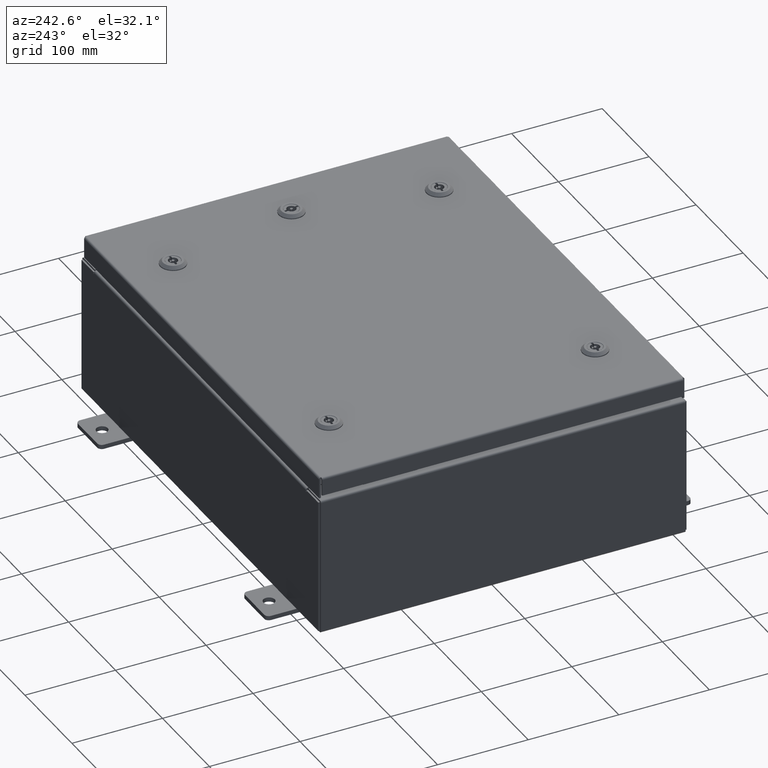
[diagram: clean part render]
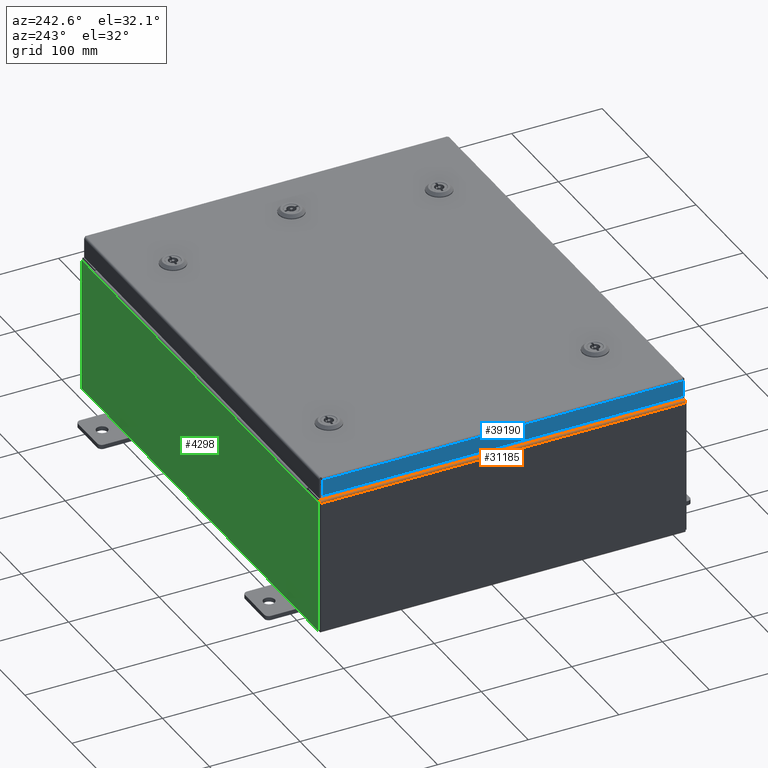
[diagram: same view with three faces highlighted in distinct colors, each labeled with its STEP entity id]
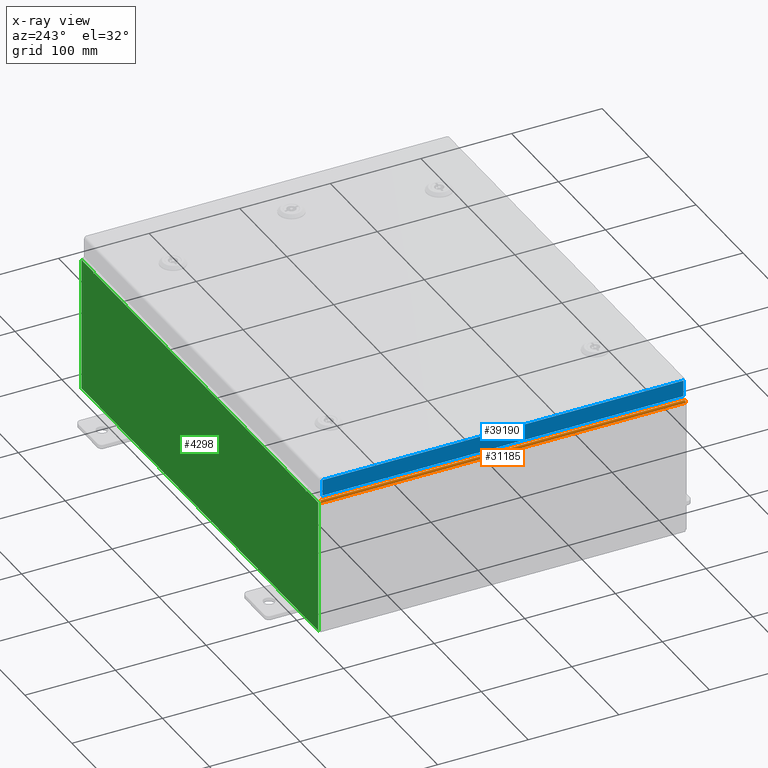
[diagram: x-ray of the same camera — body ghosted, the three highlighted faces saturated]
A machine part, auxiliary view with three faces highlighted in distinct colors.
The next image is the same camera in x-ray (body ghosted, the three faces saturated) — at least one of them is partly hidden behind the body in this view.
Their STEP definitions:

[orange] entity #31185 — the highlighted cylindrical surface (edge-blend (fillet) strip) has radius 2.2276 mm, axis along (-0, -1, -0).
#4005 = CARTESIAN_POINT ( 'NONE',  ( -9.912300000000021400, 7.925300000000000000, 5.837599999999999200 ) ) ;
#4453 = DIRECTION ( 'NONE',  ( 0.0000000000000000000, 0.0000000000000000000, 1.000000000000000000 ) ) ;
#4606 = VECTOR ( 'NONE', #54400, 39.37007874015748100 ) ;
#4804 = EDGE_CURVE ( 'NONE', #8283, #51088, #12157, .T. ) ;
#5141 = ORIENTED_EDGE ( 'NONE', *, *, #47610, .F. ) ;
#7474 = CARTESIAN_POINT ( 'NONE',  ( -9.912300000000021400, -7.925300000000000000, 5.925299999999999100 ) ) ;
#7700 = CIRCLE ( 'NONE', #8713, 0.08770000000000026400 ) ;
#7776 = VERTEX_POINT ( 'NONE', #42445 ) ;
#8283 = VERTEX_POINT ( 'NONE', #7474 ) ;
#8713 = AXIS2_PLACEMENT_3D ( 'NONE', #28878, #62921, #33765 ) ;
#8892 = DIRECTION ( 'NONE',  ( 0.0000000000000000000, 0.0000000000000000000, -1.000000000000000000 ) ) ;
#12157 = LINE ( 'NONE', #33038, #36483 ) ;
#14612 = ORIENTED_EDGE ( 'NONE', *, *, #38490, .F. ) ;
#20368 = CARTESIAN_POINT ( 'NONE',  ( -10.00000000000002300, -7.925300000000000000, 5.837599999999999200 ) ) ;
#20382 = CYLINDRICAL_SURFACE ( 'NONE', #30977, 0.08770000000000026400 ) ;
#20541 = CARTESIAN_POINT ( 'NONE',  ( -9.912300000000021400, 7.925300000000000000, 5.925299999999999100 ) ) ;
#24912 = FACE_OUTER_BOUND ( 'NONE', #54832, .T. ) ;
#28878 = CARTESIAN_POINT ( 'NONE',  ( -9.912300000000021400, -7.925300000000000000, 5.837599999999999200 ) ) ;
#28965 = CARTESIAN_POINT ( 'NONE',  ( -10.00000000000002000, 7.925300000000000000, 5.837599999999999200 ) ) ;
#30977 = AXIS2_PLACEMENT_3D ( 'NONE', #62724, #48041, #4453 ) ;
#31185 = ADVANCED_FACE ( 'NONE', ( #24912 ), #20382, .T. ) ;
#33038 = CARTESIAN_POINT ( 'NONE',  ( -9.912300000000019700, 7.925300000000000000, 5.925299999999999100 ) ) ;
#33765 = DIRECTION ( 'NONE',  ( 0.0000000000000000000, 0.0000000000000000000, -1.000000000000000000 ) ) ;
#36483 = VECTOR ( 'NONE', #37911, 39.37007874015748100 ) ;
#37911 = DIRECTION ( 'NONE',  ( 1.378798528088155100E-016, 1.000000000000000000, 1.081044524328579500E-030 ) ) ;
#37982 = DIRECTION ( 'NONE',  ( 0.0000000000000000000, 1.000000000000000000, 0.0000000000000000000 ) ) ;
#38490 = EDGE_CURVE ( 'NONE', #55304, #51088, #59523, .T. ) ;
#41752 = AXIS2_PLACEMENT_3D ( 'NONE', #4005, #37982, #8892 ) ;
#42445 = CARTESIAN_POINT ( 'NONE',  ( -10.00000000000002300, -7.925300000000000000, 5.837599999999999200 ) ) ;
#42716 = ORIENTED_EDGE ( 'NONE', *, *, #4804, .T. ) ;
#46531 = EDGE_CURVE ( 'NONE', #8283, #7776, #7700, .T. ) ;
#47610 = EDGE_CURVE ( 'NONE', #7776, #55304, #54821, .T. ) ;
#48041 = DIRECTION ( 'NONE',  ( -0.0000000000000000000, -1.000000000000000000, -0.0000000000000000000 ) ) ;
#51088 = VERTEX_POINT ( 'NONE', #20541 ) ;
#54400 = DIRECTION ( 'NONE',  ( 0.0000000000000000000, 1.000000000000000000, 0.0000000000000000000 ) ) ;
#54821 = LINE ( 'NONE', #20368, #4606 ) ;
#54832 = EDGE_LOOP ( 'NONE', ( #5141, #58786, #42716, #14612 ) ) ;
#55304 = VERTEX_POINT ( 'NONE', #28965 ) ;
#58786 = ORIENTED_EDGE ( 'NONE', *, *, #46531, .F. ) ;
#59523 = CIRCLE ( 'NONE', #41752, 0.08770000000000026400 ) ;
#62724 = CARTESIAN_POINT ( 'NONE',  ( -9.912300000000021400, -7.925300000000000000, 5.837599999999999200 ) ) ;
#62921 = DIRECTION ( 'NONE',  ( -0.0000000000000000000, -1.000000000000000000, -0.0000000000000000000 ) ) ;

[blue] entity #39190 — the highlighted planar face has unit normal (1, 0, -0).
#816 = PLANE ( 'NONE',  #29586 ) ;
#1403 = CARTESIAN_POINT ( 'NONE',  ( -9.937499999999998200, 7.848657864376270300, -0.08770000000000004200 ) ) ;
#1856 = EDGE_CURVE ( 'NONE', #14657, #42463, #25234, .T. ) ;
#2609 = ORIENTED_EDGE ( 'NONE', *, *, #39126, .T. ) ;
#4391 = EDGE_CURVE ( 'NONE', #41083, #14657, #32723, .T. ) ;
#6837 = DIRECTION ( 'NONE',  ( 4.379057701015054300E-047, 1.000000000000000000, 1.204594390907076900E-016 ) ) ;
#10366 = CARTESIAN_POINT ( 'NONE',  ( -9.937499999999998200, 7.848657864376270300, 8.521929035968661100E-014 ) ) ;
#10572 = DIRECTION ( 'NONE',  ( 1.000000000000000000, 3.654886874889598900E-031, -3.034122441942816500E-015 ) ) ;
#14657 = VERTEX_POINT ( 'NONE', #15246 ) ;
#15246 = CARTESIAN_POINT ( 'NONE',  ( -9.937500000000000000, -7.848657864376261500, -0.7949999999999996000 ) ) ;
#19472 = LINE ( 'NONE', #10366, #56746 ) ;
#20144 = CARTESIAN_POINT ( 'NONE',  ( -9.937499999999998200, -3.632043831921537800E-030, 3.041240542281831500E-014 ) ) ;
#23705 = VECTOR ( 'NONE', #6837, 39.37007874015748100 ) ;
#23935 = CARTESIAN_POINT ( 'NONE',  ( -9.937500000000000000, 7.848657864376274800, -0.7949999999999978200 ) ) ;
#25234 = LINE ( 'NONE', #26558, #23705 ) ;
#25849 = ORIENTED_EDGE ( 'NONE', *, *, #4391, .F. ) ;
#26558 = CARTESIAN_POINT ( 'NONE',  ( -9.937500000000000000, -7.937499999999999100, -0.7949999999999997100 ) ) ;
#28818 = EDGE_LOOP ( 'NONE', ( #38068, #2609, #45321, #25849 ) ) ;
#28852 = CARTESIAN_POINT ( 'NONE',  ( -9.937499999999998200, -7.848657864376267700, -0.07469999999999976700 ) ) ;
#29586 = AXIS2_PLACEMENT_3D ( 'NONE', #20144, #10572, #44600 ) ;
#31243 = DIRECTION ( 'NONE',  ( 3.654886874889599300E-031, -1.000000000000000000, -1.077392013397602500E-045 ) ) ;
#32723 = LINE ( 'NONE', #28852, #57095 ) ;
#33929 = DIRECTION ( 'NONE',  ( -3.034122441942816500E-015, 6.982962677686265900E-015, -1.000000000000000000 ) ) ;
#34578 = DIRECTION ( 'NONE',  ( -3.034122441942816500E-015, 6.982962677686265900E-015, -1.000000000000000000 ) ) ;
#38068 = ORIENTED_EDGE ( 'NONE', *, *, #51698, .F. ) ;
#39126 = EDGE_CURVE ( 'NONE', #48754, #42463, #19472, .T. ) ;
#39190 = ADVANCED_FACE ( 'NONE', ( #55221 ), #816, .F. ) ;
#41083 = VERTEX_POINT ( 'NONE', #55993 ) ;
#41635 = CARTESIAN_POINT ( 'NONE',  ( -9.937499999999998200, -7.937499999999999100, -0.08770000000000004200 ) ) ;
#42463 = VERTEX_POINT ( 'NONE', #23935 ) ;
#44600 = DIRECTION ( 'NONE',  ( -3.034122441942816500E-015, 0.0000000000000000000, -1.000000000000000000 ) ) ;
#45321 = ORIENTED_EDGE ( 'NONE', *, *, #1856, .F. ) ;
#48754 = VERTEX_POINT ( 'NONE', #1403 ) ;
#51501 = VECTOR ( 'NONE', #31243, 39.37007874015748100 ) ;
#51698 = EDGE_CURVE ( 'NONE', #48754, #41083, #53049, .T. ) ;
#53049 = LINE ( 'NONE', #41635, #51501 ) ;
#55221 = FACE_OUTER_BOUND ( 'NONE', #28818, .T. ) ;
#55993 = CARTESIAN_POINT ( 'NONE',  ( -9.937499999999998200, -7.848657864376265900, -0.08770000000000007000 ) ) ;
#56746 = VECTOR ( 'NONE', #34578, 39.37007874015748100 ) ;
#57095 = VECTOR ( 'NONE', #33929, 39.37007874015748100 ) ;

[green] entity #4298 — the highlighted planar face has unit normal (0, -1, 0).
#704 = CARTESIAN_POINT ( 'NONE',  ( -8.905874999999998200, 0.0000000000000000000, 2.874950000000000600 ) ) ;
#884 = CARTESIAN_POINT ( 'NONE',  ( -8.924550000000000000, -0.0000000000000000000, 0.0000000000000000000 ) ) ;
#2174 = LINE ( 'NONE', #18911, #50833 ) ;
#2330 = VECTOR ( 'NONE', #39042, 39.37007874015748100 ) ;
#2624 = DIRECTION ( 'NONE',  ( 0.0000000000000000000, 0.0000000000000000000, -1.000000000000000000 ) ) ;
#3003 = VECTOR ( 'NONE', #6002, 39.37007874015748100 ) ;
#4298 = ADVANCED_FACE ( 'NONE', ( #60131 ), #43122, .F. ) ;
#4408 = LINE ( 'NONE', #48657, #41647 ) ;
#5457 = CARTESIAN_POINT ( 'NONE',  ( 8.924550000000000000, 0.0000000000000000000, 2.925300000000000500 ) ) ;
#5580 = DIRECTION ( 'NONE',  ( 0.0000000000000000000, 0.0000000000000000000, -1.000000000000000000 ) ) ;
#6002 = DIRECTION ( 'NONE',  ( -4.340572780400004900E-014, 0.0000000000000000000, -1.000000000000000000 ) ) ;
#6032 = EDGE_LOOP ( 'NONE', ( #54401, #17588, #58185, #45445, #31233, #23508, #14735, #56084, #9452, #61881, #32672, #60821 ) ) ;
#6809 = EDGE_CURVE ( 'NONE', #15583, #33541, #24935, .T. ) ;
#8569 = LINE ( 'NONE', #884, #32892 ) ;
#8909 = VERTEX_POINT ( 'NONE', #40567 ) ;
#9452 = ORIENTED_EDGE ( 'NONE', *, *, #6809, .T. ) ;
#9939 = CARTESIAN_POINT ( 'NONE',  ( -9.925300000000000000, 0.0000000000000000000, 2.925300000000000500 ) ) ;
#10734 = CIRCLE ( 'NONE', #12435, 0.01867500000000003900 ) ;
#11576 = CARTESIAN_POINT ( 'NONE',  ( -8.887200000000000000, 1.024442997624098700E-016, 2.912300000000000600 ) ) ;
#11949 = VERTEX_POINT ( 'NONE', #26559 ) ;
#12435 = AXIS2_PLACEMENT_3D ( 'NONE', #22874, #56944, #27789 ) ;
#13740 = LINE ( 'NONE', #9939, #2330 ) ;
#13989 = CARTESIAN_POINT ( 'NONE',  ( 0.0000000000000000000, 0.0000000000000000000, 0.0000000000000000000 ) ) ;
#14735 = ORIENTED_EDGE ( 'NONE', *, *, #16319, .F. ) ;
#15583 = VERTEX_POINT ( 'NONE', #40684 ) ;
#16222 = EDGE_CURVE ( 'NONE', #22831, #26902, #44850, .T. ) ;
#16319 = EDGE_CURVE ( 'NONE', #50975, #8909, #17441, .T. ) ;
#16576 = CARTESIAN_POINT ( 'NONE',  ( -8.924550000000000000, 0.0000000000000000000, 2.925300000000000500 ) ) ;
#17441 = LINE ( 'NONE', #30216, #3003 ) ;
#17588 = ORIENTED_EDGE ( 'NONE', *, *, #16222, .F. ) ;
#18531 = EDGE_CURVE ( 'NONE', #30209, #36259, #37072, .T. ) ;
#18872 = DIRECTION ( 'NONE',  ( 0.0000000000000000000, -0.0000000000000000000, -1.000000000000000000 ) ) ;
#18911 = CARTESIAN_POINT ( 'NONE',  ( -9.925300000000000000, 0.0000000000000000000, 2.925300000000000500 ) ) ;
#19111 = CARTESIAN_POINT ( 'NONE',  ( 8.887200000000000000, 0.0000000000000000000, 2.874950000000000600 ) ) ;
#19851 = CARTESIAN_POINT ( 'NONE',  ( -8.887200000000000000, -0.0000000000000000000, 2.874950000000000600 ) ) ;
#20730 = EDGE_CURVE ( 'NONE', #30209, #22831, #62211, .T. ) ;
#21283 = LINE ( 'NONE', #33129, #33563 ) ;
#22831 = VERTEX_POINT ( 'NONE', #19851 ) ;
#22874 = CARTESIAN_POINT ( 'NONE',  ( 8.905875000000000000, 0.0000000000000000000, 2.874950000000000600 ) ) ;
#23260 = CARTESIAN_POINT ( 'NONE',  ( -8.887200000000000000, -0.0000000000000000000, 0.0000000000000000000 ) ) ;
#23323 = CARTESIAN_POINT ( 'NONE',  ( -8.924549999999998200, 0.0000000000000000000, 2.874950000000000600 ) ) ;
#23508 = ORIENTED_EDGE ( 'NONE', *, *, #25481, .F. ) ;
#24620 = VERTEX_POINT ( 'NONE', #16576 ) ;
#24935 = LINE ( 'NONE', #46409, #62272 ) ;
#25121 = CARTESIAN_POINT ( 'NONE',  ( 8.887200000000000000, 0.0000000000000000000, 2.912300000000000600 ) ) ;
#25481 = EDGE_CURVE ( 'NONE', #8909, #37233, #10734, .T. ) ;
#26324 = CARTESIAN_POINT ( 'NONE',  ( -9.925300000000000000, 0.0000000000000000000, -2.925299999999999600 ) ) ;
#26559 = CARTESIAN_POINT ( 'NONE',  ( -9.925300000000000000, 0.0000000000000000000, 2.925300000000000500 ) ) ;
#26902 = VERTEX_POINT ( 'NONE', #23323 ) ;
#27789 = DIRECTION ( 'NONE',  ( 0.0000000000000000000, 0.0000000000000000000, -1.000000000000000000 ) ) ;
#27860 = DIRECTION ( 'NONE',  ( -0.0000000000000000000, -0.0000000000000000000, 1.000000000000000000 ) ) ;
#27931 = EDGE_CURVE ( 'NONE', #11949, #24620, #13740, .T. ) ;
#28676 = DIRECTION ( 'NONE',  ( 1.000000000000000000, 0.0000000000000000000, 0.0000000000000000000 ) ) ;
#30209 = VERTEX_POINT ( 'NONE', #11576 ) ;
#30216 = CARTESIAN_POINT ( 'NONE',  ( 8.924549999999875600, -0.0000000000000000000, -3.873765880731832600E-013 ) ) ;
#31233 = ORIENTED_EDGE ( 'NONE', *, *, #46492, .F. ) ;
#31281 = EDGE_CURVE ( 'NONE', #33541, #42002, #4408, .T. ) ;
#32417 = DIRECTION ( 'NONE',  ( 1.000000000000000000, 0.0000000000000000000, 0.0000000000000000000 ) ) ;
#32672 = ORIENTED_EDGE ( 'NONE', *, *, #59104, .T. ) ;
#32892 = VECTOR ( 'NONE', #34845, 39.37007874015748100 ) ;
#33129 = CARTESIAN_POINT ( 'NONE',  ( 8.887200000000000000, 0.0000000000000000000, 0.0000000000000000000 ) ) ;
#33541 = VERTEX_POINT ( 'NONE', #58364 ) ;
#33563 = VECTOR ( 'NONE', #42930, 39.37007874015748100 ) ;
#34172 = DIRECTION ( 'NONE',  ( -1.000000000000000000, -0.0000000000000000000, -0.0000000000000000000 ) ) ;
#34663 = DIRECTION ( 'NONE',  ( -0.0000000000000000000, 1.000000000000000000, -0.0000000000000000000 ) ) ;
#34845 = DIRECTION ( 'NONE',  ( 0.0000000000000000000, 0.0000000000000000000, 1.000000000000000000 ) ) ;
#36259 = VERTEX_POINT ( 'NONE', #25121 ) ;
#36293 = VECTOR ( 'NONE', #37945, 39.37007874015748100 ) ;
#37072 = LINE ( 'NONE', #61579, #48517 ) ;
#37233 = VERTEX_POINT ( 'NONE', #19111 ) ;
#37945 = DIRECTION ( 'NONE',  ( 0.0000000000000000000, 0.0000000000000000000, -1.000000000000000000 ) ) ;
#37990 = VECTOR ( 'NONE', #27860, 39.37007874015748100 ) ;
#38029 = EDGE_CURVE ( 'NONE', #26902, #24620, #8569, .T. ) ;
#39042 = DIRECTION ( 'NONE',  ( 1.000000000000000000, 0.0000000000000000000, 0.0000000000000000000 ) ) ;
#40567 = CARTESIAN_POINT ( 'NONE',  ( 8.924550000000000000, 0.0000000000000000000, 2.874950000000000600 ) ) ;
#40684 = CARTESIAN_POINT ( 'NONE',  ( 9.925300000000000000, 0.0000000000000000000, 2.925300000000000500 ) ) ;
#41647 = VECTOR ( 'NONE', #34172, 39.37007874015748100 ) ;
#42002 = VERTEX_POINT ( 'NONE', #26324 ) ;
#42930 = DIRECTION ( 'NONE',  ( 0.0000000000000000000, 0.0000000000000000000, 1.000000000000000000 ) ) ;
#43122 = PLANE ( 'NONE',  #52063 ) ;
#44850 = CIRCLE ( 'NONE', #54504, 0.01867500000000003900 ) ;
#45445 = ORIENTED_EDGE ( 'NONE', *, *, #18531, .T. ) ;
#46409 = CARTESIAN_POINT ( 'NONE',  ( 9.925300000000000000, 0.0000000000000000000, 2.925300000000000500 ) ) ;
#46492 = EDGE_CURVE ( 'NONE', #37233, #36259, #21283, .T. ) ;
#48009 = DIRECTION ( 'NONE',  ( 0.0000000000000000000, -1.000000000000000000, 0.0000000000000000000 ) ) ;
#48517 = VECTOR ( 'NONE', #32417, 39.37007874015748100 ) ;
#48657 = CARTESIAN_POINT ( 'NONE',  ( -9.925300000000000000, 0.0000000000000000000, -2.925299999999999600 ) ) ;
#50833 = VECTOR ( 'NONE', #28676, 39.37007874015748100 ) ;
#50975 = VERTEX_POINT ( 'NONE', #5457 ) ;
#52063 = AXIS2_PLACEMENT_3D ( 'NONE', #13989, #48009, #18872 ) ;
#52131 = CARTESIAN_POINT ( 'NONE',  ( -9.925300000000000000, 0.0000000000000000000, 2.925300000000000500 ) ) ;
#52500 = LINE ( 'NONE', #52131, #37990 ) ;
#54401 = ORIENTED_EDGE ( 'NONE', *, *, #38029, .F. ) ;
#54504 = AXIS2_PLACEMENT_3D ( 'NONE', #704, #34663, #5580 ) ;
#56084 = ORIENTED_EDGE ( 'NONE', *, *, #61139, .T. ) ;
#56944 = DIRECTION ( 'NONE',  ( -0.0000000000000000000, 1.000000000000000000, -0.0000000000000000000 ) ) ;
#58185 = ORIENTED_EDGE ( 'NONE', *, *, #20730, .F. ) ;
#58364 = CARTESIAN_POINT ( 'NONE',  ( 9.925300000000000000, 0.0000000000000000000, -2.925299999999999600 ) ) ;
#59104 = EDGE_CURVE ( 'NONE', #42002, #11949, #52500, .T. ) ;
#60131 = FACE_OUTER_BOUND ( 'NONE', #6032, .T. ) ;
#60821 = ORIENTED_EDGE ( 'NONE', *, *, #27931, .T. ) ;
#61139 = EDGE_CURVE ( 'NONE', #50975, #15583, #2174, .T. ) ;
#61579 = CARTESIAN_POINT ( 'NONE',  ( -8.887200000000000000, 1.024442997624098700E-016, 2.912300000000000600 ) ) ;
#61881 = ORIENTED_EDGE ( 'NONE', *, *, #31281, .T. ) ;
#62211 = LINE ( 'NONE', #23260, #36293 ) ;
#62272 = VECTOR ( 'NONE', #2624, 39.37007874015748100 ) ;